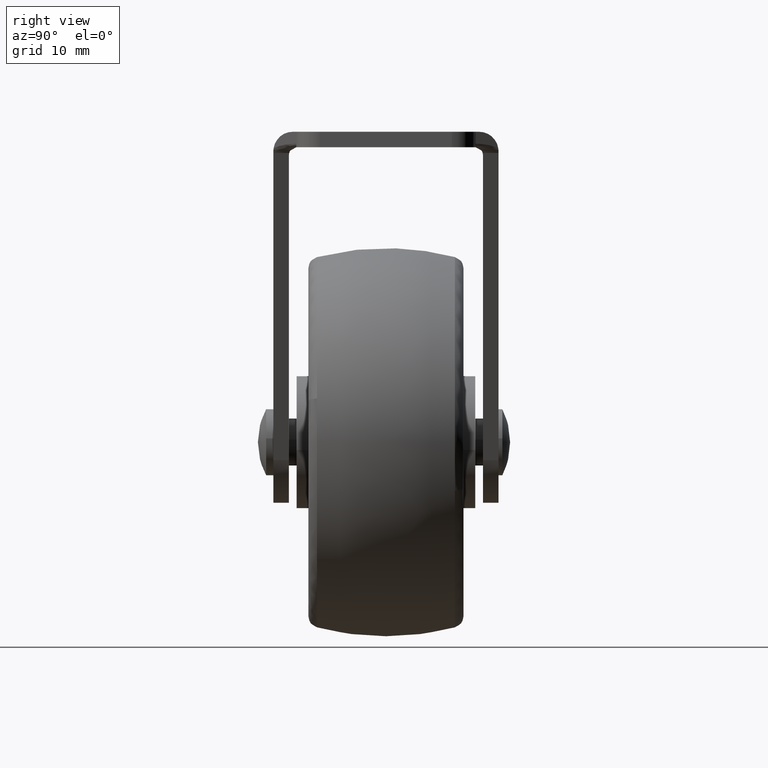
[diagram: clean part render]
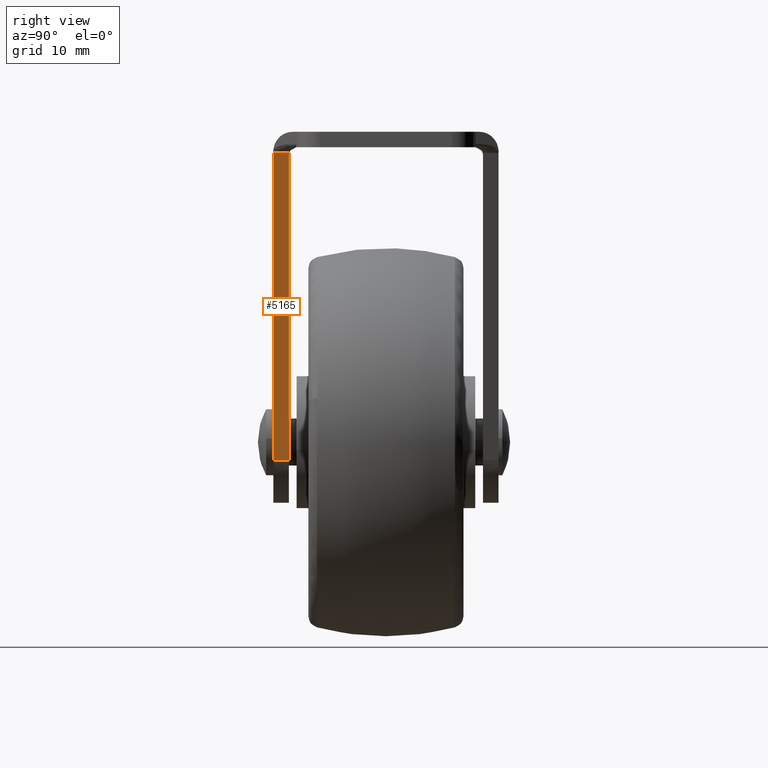
[diagram: same view with one face highlighted and labeled with its STEP entity id]
A machine part, right view. The second image highlights one B-rep face of the part: STEP entity #5165.
In plain terms, the highlighted face is a freeform B-spline surface patch.
Its self-contained STEP definition (entity closure, byte-faithful):
#4680=CARTESIAN_POINT('',(18.202673882767751,-12.463622182917620,-2.732731804007515));
#4681=VERTEX_POINT('',#4680);
#4706=CARTESIAN_POINT('',(18.202673882767751,-14.500000000000000,-2.732731804007570));
#4707=VERTEX_POINT('',#4706);
#4721=CARTESIAN_POINT('',(18.202673882767751,-12.463622182917620,-2.732731804007515));
#4722=CARTESIAN_POINT('',(18.202673882767751,-14.500000000000000,-2.732731804007570));
#4723=QUASI_UNIFORM_CURVE('',1,(#4721,#4722),.UNSPECIFIED.,.F.,.U.);
#4724=EDGE_CURVE('',#4681,#4707,#4723,.T.);
#5099=CARTESIAN_POINT('',(18.128544945249100,-12.500000000000000,-3.0));
#5100=VERTEX_POINT('',#5099);
#5101=CARTESIAN_POINT('',(18.128544945249100,-12.500000000000000,-3.0));
#5102=CARTESIAN_POINT('',(18.166296065685366,-12.500000000000002,-2.863890213546391));
#5103=CARTESIAN_POINT('',(18.202673882767741,-12.463622182917620,-2.732731804007512));
#5111=(BOUNDED_CURVE()B_SPLINE_CURVE(2,(#5101,#5102,#5103),.UNSPECIFIED.,.F.,.U.)CURVE()GEOMETRIC_REPRESENTATION_ITEM()QUASI_UNIFORM_CURVE()RATIONAL_B_SPLINE_CURVE((1.0,0.990863810752445,1.0))REPRESENTATION_ITEM(''));
#5112=EDGE_CURVE('',#5100,#4681,#5111,.T.);
#5137=CARTESIAN_POINT('',(6.678940730081922,-14.601717068016370,-44.280978331116323));
#5138=CARTESIAN_POINT('',(18.750900711468759,-14.601717068016370,-0.756127249750252));
#5139=CARTESIAN_POINT('',(6.678940730081922,-12.361905060281339,-44.280978331116323));
#5140=CARTESIAN_POINT('',(18.750900711468759,-12.361905060281339,-0.756127249750252));
#5141=B_SPLINE_SURFACE_WITH_KNOTS('',1,1,((#5137,#5139),(#5138,#5140)),.UNSPECIFIED.,.F.,.F.,.U.,(2,2),(2,2),(0.0,45.167962976509124),(0.0,2.239812007735031),.UNSPECIFIED.);
#5142=ORIENTED_EDGE('',*,*,#5112,.T.);
#5143=ORIENTED_EDGE('',*,*,#4724,.T.);
#5144=CARTESIAN_POINT('',(7.227166871882170,-14.500000000000000,-42.304376253445547));
#5145=VERTEX_POINT('',#5144);
#5146=CARTESIAN_POINT('',(18.202673882767751,-14.500000000000000,-2.732731804007570));
#5147=CARTESIAN_POINT('',(7.227166871882170,-14.500000000000000,-42.304376253445547));
#5148=QUASI_UNIFORM_CURVE('',1,(#5146,#5147),.UNSPECIFIED.,.F.,.U.);
#5149=EDGE_CURVE('',#4707,#5145,#5148,.T.);
#5150=ORIENTED_EDGE('',*,*,#5149,.T.);
#5151=CARTESIAN_POINT('',(7.227166871882170,-12.500000000000000,-42.304376253445547));
#5152=VERTEX_POINT('',#5151);
#5153=CARTESIAN_POINT('',(7.227166871882170,-14.500000000000000,-42.304376253445547));
#5154=CARTESIAN_POINT('',(7.227166871882170,-12.500000000000000,-42.304376253445547));
#5155=QUASI_UNIFORM_CURVE('',1,(#5153,#5154),.UNSPECIFIED.,.F.,.U.);
#5156=EDGE_CURVE('',#5145,#5152,#5155,.T.);
#5157=ORIENTED_EDGE('',*,*,#5156,.T.);
#5158=CARTESIAN_POINT('',(7.227166871882170,-12.500000000000000,-42.304376253445547));
#5159=CARTESIAN_POINT('',(18.128544945249100,-12.500000000000000,-3.0));
#5160=QUASI_UNIFORM_CURVE('',1,(#5158,#5159),.UNSPECIFIED.,.F.,.U.);
#5161=EDGE_CURVE('',#5152,#5100,#5160,.T.);
#5162=ORIENTED_EDGE('',*,*,#5161,.T.);
#5163=EDGE_LOOP('',(#5142,#5143,#5150,#5157,#5162));
#5164=FACE_OUTER_BOUND('',#5163,.T.);
#5165=ADVANCED_FACE('',(#5164),#5141,.F.);